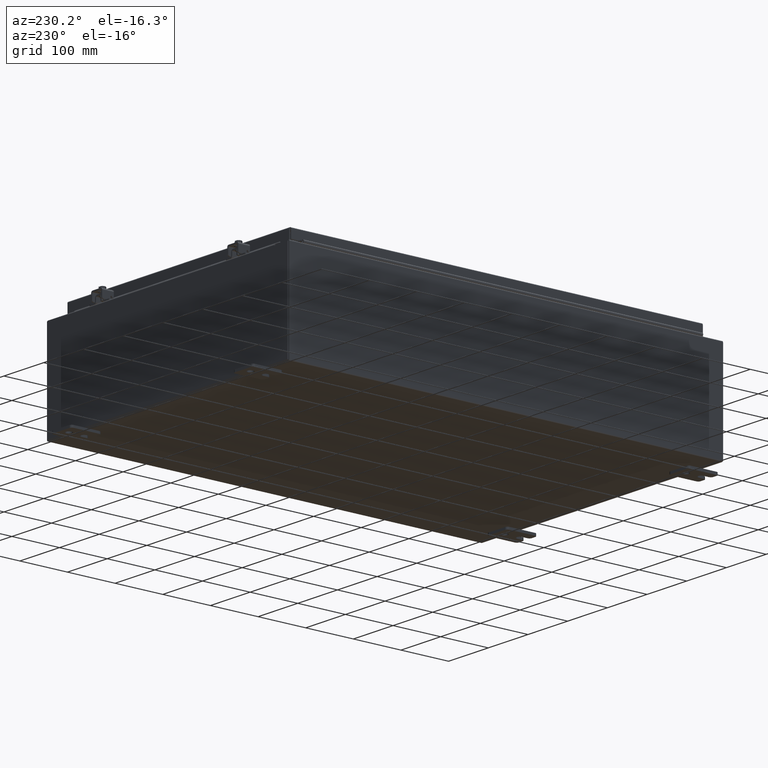
[diagram: clean part render]
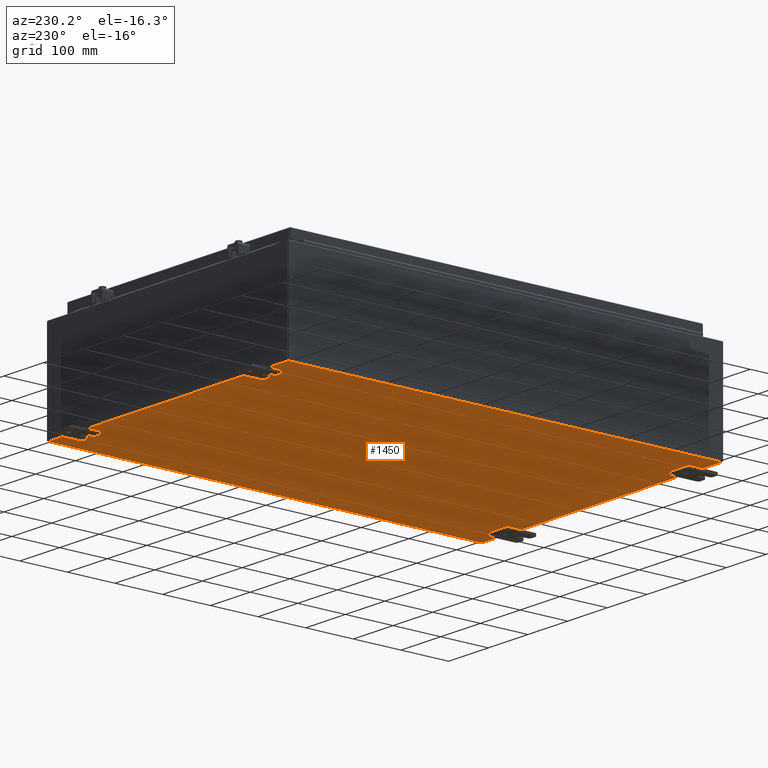
[diagram: same view with one face highlighted and labeled with its STEP entity id]
A machine part, auxiliary view. The second image highlights one B-rep face of the part: STEP entity #1450.
In plain terms, the highlighted planar face has unit normal (0, 0, -1).
Its self-contained STEP definition (entity closure, byte-faithful):
#1064 = CARTESIAN_POINT ( 'NONE',  ( 0.0000000000000000000, 0.0000000000000000000, -0.07469999999999998900 ) ) ;
#1450 = ADVANCED_FACE ( 'NONE', ( #16049 ), #40508, .T. ) ;
#4400 = DIRECTION ( 'NONE',  ( -1.000000000000000000, 0.0000000000000000000, -0.0000000000000000000 ) ) ;
#4518 = VERTEX_POINT ( 'NONE', #32309 ) ;
#5200 = CARTESIAN_POINT ( 'NONE',  ( -12.00000000000000200, 17.92529999999999600, -0.07469999999999998900 ) ) ;
#5576 = EDGE_CURVE ( 'NONE', #37067, #35793, #28344, .T. ) ;
#7376 = EDGE_CURVE ( 'NONE', #25373, #4518, #21169, .T. ) ;
#8083 = CARTESIAN_POINT ( 'NONE',  ( 11.91230000000000000, 17.92529999999999600, -0.07469999999999739300 ) ) ;
#10684 = LINE ( 'NONE', #39696, #27138 ) ;
#10788 = DIRECTION ( 'NONE',  ( -0.0000000000000000000, -1.000000000000000000, -8.208677865577646300E-017 ) ) ;
#11491 = ORIENTED_EDGE ( 'NONE', *, *, #7376, .T. ) ;
#13419 = DIRECTION ( 'NONE',  ( -0.0000000000000000000, 1.000000000000000000, -0.0000000000000000000 ) ) ;
#14250 = VECTOR ( 'NONE', #14985, 39.37007874015748100 ) ;
#14985 = DIRECTION ( 'NONE',  ( -1.000000000000000000, -0.0000000000000000000, -0.0000000000000000000 ) ) ;
#16049 = FACE_OUTER_BOUND ( 'NONE', #32114, .T. ) ;
#17427 = CARTESIAN_POINT ( 'NONE',  ( 11.91230000000000000, 17.92529999999999600, -0.07469999999999739300 ) ) ;
#20692 = CARTESIAN_POINT ( 'NONE',  ( -11.91230000000000000, -17.92530000000000400, -0.07469999999999996100 ) ) ;
#20791 = ORIENTED_EDGE ( 'NONE', *, *, #34371, .F. ) ;
#21169 = LINE ( 'NONE', #33098, #33002 ) ;
#24061 = DIRECTION ( 'NONE',  ( 0.0000000000000000000, 0.0000000000000000000, -1.000000000000000000 ) ) ;
#24348 = ORIENTED_EDGE ( 'NONE', *, *, #34943, .F. ) ;
#25373 = VERTEX_POINT ( 'NONE', #20692 ) ;
#27138 = VECTOR ( 'NONE', #33075, 39.37007874015748100 ) ;
#28344 = LINE ( 'NONE', #17427, #29386 ) ;
#29386 = VECTOR ( 'NONE', #10788, 39.37007874015748100 ) ;
#29450 = AXIS2_PLACEMENT_3D ( 'NONE', #1064, #24061, #4400 ) ;
#32114 = EDGE_LOOP ( 'NONE', ( #20791, #11491, #24348, #36379 ) ) ;
#32309 = CARTESIAN_POINT ( 'NONE',  ( -11.91230000000000000, 17.92529999999999600, -0.07469999999999998900 ) ) ;
#33002 = VECTOR ( 'NONE', #13419, 39.37007874015748100 ) ;
#33075 = DIRECTION ( 'NONE',  ( 1.000000000000000000, 0.0000000000000000000, 0.0000000000000000000 ) ) ;
#33098 = CARTESIAN_POINT ( 'NONE',  ( -11.91230000000000000, -17.92530000000000400, -0.07469999999999996100 ) ) ;
#33734 = CARTESIAN_POINT ( 'NONE',  ( 11.91229999999999100, -17.92530000000000400, -0.07469999999999998900 ) ) ;
#34371 = EDGE_CURVE ( 'NONE', #25373, #35793, #10684, .T. ) ;
#34943 = EDGE_CURVE ( 'NONE', #37067, #4518, #41517, .T. ) ;
#35793 = VERTEX_POINT ( 'NONE', #33734 ) ;
#36379 = ORIENTED_EDGE ( 'NONE', *, *, #5576, .T. ) ;
#37067 = VERTEX_POINT ( 'NONE', #8083 ) ;
#39696 = CARTESIAN_POINT ( 'NONE',  ( -12.00000000000000200, -17.92530000000000400, -0.07469999999999998900 ) ) ;
#40508 = PLANE ( 'NONE',  #29450 ) ;
#41517 = LINE ( 'NONE', #5200, #14250 ) ;